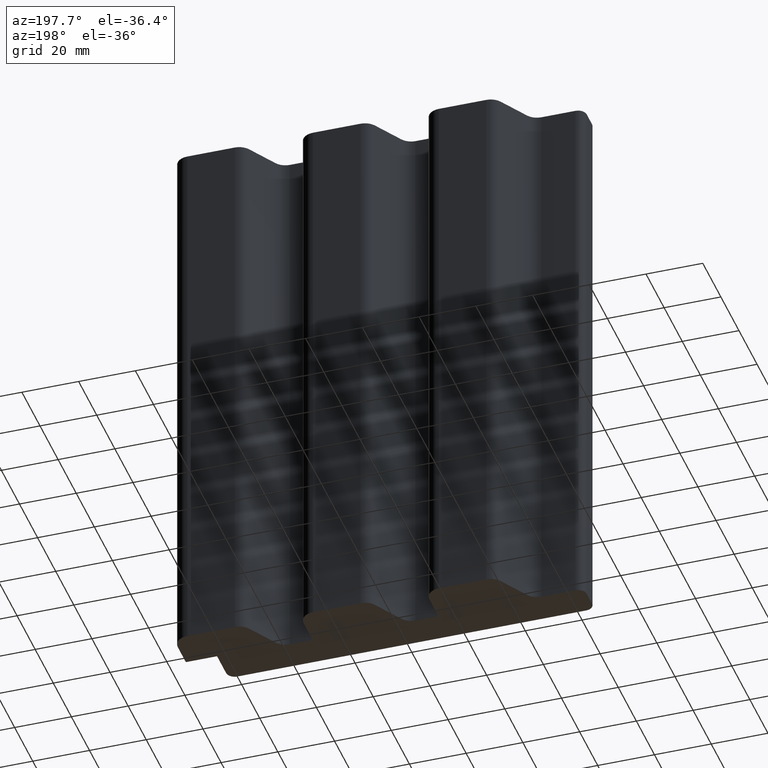
[diagram: clean part render]
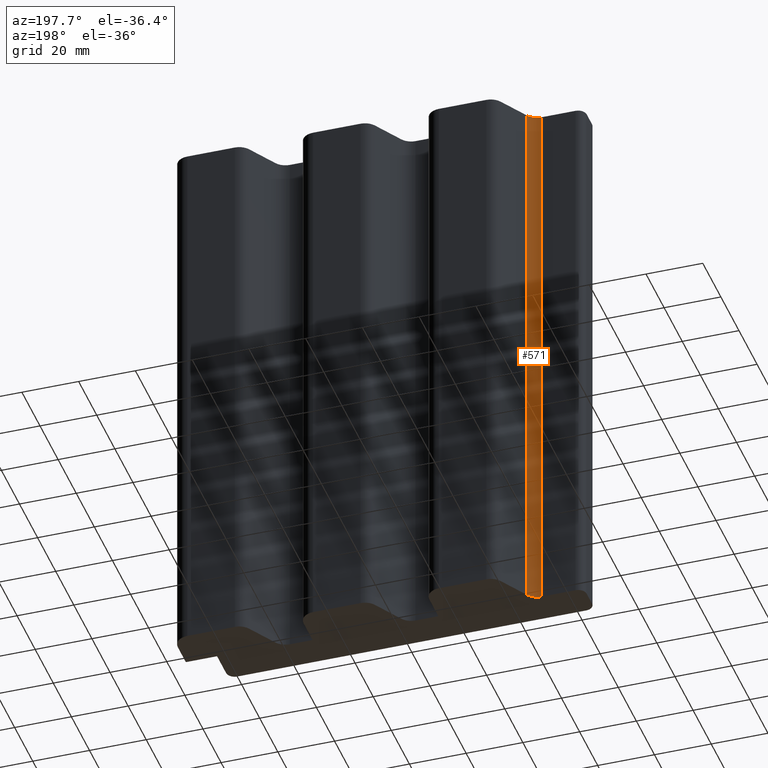
[diagram: same view with one face highlighted and labeled with its STEP entity id]
A machine part, auxiliary view. The second image highlights one B-rep face of the part: STEP entity #571.
In plain terms, the highlighted cylindrical surface (edge-blend (fillet) strip) has radius 5 mm, axis along (0, 0, 1).
Its self-contained STEP definition (entity closure, byte-faithful):
#47=FACE_OUTER_BOUND('',#77,.T.);
#77=EDGE_LOOP('',(#433,#434,#435,#436));
#123=LINE('',#912,#183);
#124=LINE('',#918,#184);
#183=VECTOR('',#739,10.);
#184=VECTOR('',#746,10.);
#225=CIRCLE('',#628,5.);
#226=CIRCLE('',#629,5.);
#265=VERTEX_POINT('',#908);
#266=VERTEX_POINT('',#910);
#267=VERTEX_POINT('',#914);
#268=VERTEX_POINT('',#916);
#335=EDGE_CURVE('',#265,#266,#123,.T.);
#336=EDGE_CURVE('',#265,#267,#225,.T.);
#337=EDGE_CURVE('',#268,#266,#226,.T.);
#338=EDGE_CURVE('',#267,#268,#124,.T.);
#433=ORIENTED_EDGE('',*,*,#336,.F.);
#434=ORIENTED_EDGE('',*,*,#335,.T.);
#435=ORIENTED_EDGE('',*,*,#337,.F.);
#436=ORIENTED_EDGE('',*,*,#338,.F.);
#551=CYLINDRICAL_SURFACE('',#627,5.);
#571=ADVANCED_FACE('',(#47),#551,.F.);
#627=AXIS2_PLACEMENT_3D('',#913,#740,#741);
#628=AXIS2_PLACEMENT_3D('',#915,#742,#743);
#629=AXIS2_PLACEMENT_3D('',#917,#744,#745);
#739=DIRECTION('',(0.,0.,1.));
#740=DIRECTION('center_axis',(0.,0.,1.));
#741=DIRECTION('ref_axis',(0.,-1.,0.));
#742=DIRECTION('center_axis',(0.,0.,1.));
#743=DIRECTION('ref_axis',(0.,-1.,0.));
#744=DIRECTION('center_axis',(0.,0.,-1.));
#745=DIRECTION('ref_axis',(0.,-1.,0.));
#746=DIRECTION('',(0.,0.,1.));
#908=CARTESIAN_POINT('',(-49.5000000000327,11.9999999999967,0.));
#910=CARTESIAN_POINT('',(-49.5000000000327,11.9999999999967,200.));
#912=CARTESIAN_POINT('',(-49.5000000000327,11.9999999999967,0.));
#913=CARTESIAN_POINT('Origin',(-49.5000000000327,16.9999999999967,0.));
#914=CARTESIAN_POINT('',(-45.2060730707662,14.4383225171508,0.));
#915=CARTESIAN_POINT('Origin',(-49.5000000000327,16.9999999999967,0.));
#916=CARTESIAN_POINT('',(-45.2060730707662,14.4383225171508,200.));
#917=CARTESIAN_POINT('Origin',(-49.5000000000327,16.9999999999967,200.));
#918=CARTESIAN_POINT('',(-45.2060730707662,14.4383225171508,0.));